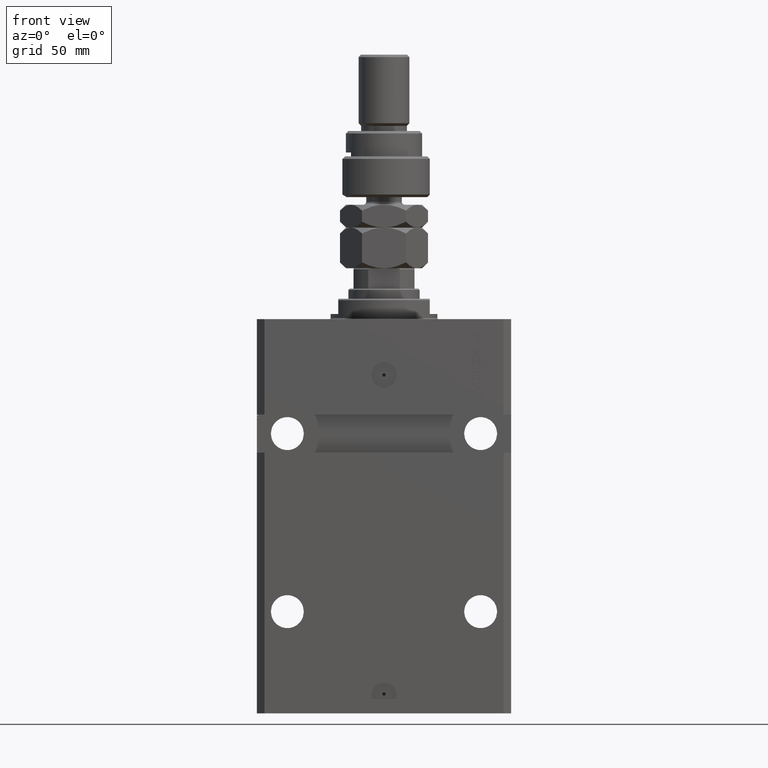
[diagram: clean part render]
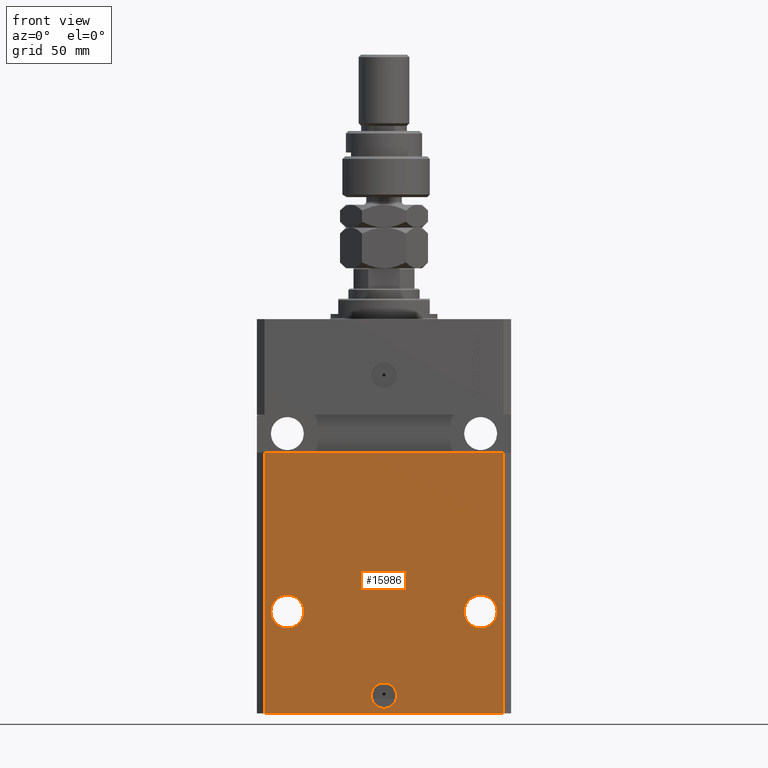
[diagram: same view with one face highlighted and labeled with its STEP entity id]
A machine part, front view. The second image highlights one B-rep face of the part: STEP entity #15986.
In plain terms, the highlighted planar face has unit normal (-0, -1, 0).
Its self-contained STEP definition (entity closure, byte-faithful):
#87 = DIRECTION ( 'NONE',  ( -1.000000000000000000, 0.000000000000000000, 0.000000000000000000 ) ) ;
#141 = CARTESIAN_POINT ( 'NONE',  ( 47.00000000000000000, -37.50000000000000711, -155.0000000000000000 ) ) ;
#528 = ORIENTED_EDGE ( 'NONE', *, *, #33166, .F. ) ;
#724 = DIRECTION ( 'NONE',  ( 1.000000000000000000, 0.000000000000000000, 0.000000000000000000 ) ) ;
#1275 = CARTESIAN_POINT ( 'NONE',  ( -47.00000000000000000, -37.49999999999999289, -155.0000000000000000 ) ) ;
#1932 = DIRECTION ( 'NONE',  ( -1.476360405086644309E-16, -1.000000000000000000, 0.000000000000000000 ) ) ;
#2224 = EDGE_LOOP ( 'NONE', ( #528, #7867 ) ) ;
#2244 = CIRCLE ( 'NONE', #24332, 6.499999999999999112 ) ;
#2297 = ORIENTED_EDGE ( 'NONE', *, *, #33686, .F. ) ;
#2831 = EDGE_CURVE ( 'NONE', #21325, #18239, #10465, .T. ) ;
#3031 = VERTEX_POINT ( 'NONE', #31474 ) ;
#3171 = DIRECTION ( 'NONE',  ( 1.000000000000000000, 0.000000000000000000, 0.000000000000000000 ) ) ;
#3817 = CARTESIAN_POINT ( 'NONE',  ( -38.00000000000002842, -37.50000000000000711, -115.0000000000000000 ) ) ;
#4293 = DIRECTION ( 'NONE',  ( 1.176083712526788232E-16, -1.000000000000000000, 0.000000000000000000 ) ) ;
#4346 = DIRECTION ( 'NONE',  ( 0.000000000000000000, 0.000000000000000000, 1.000000000000000000 ) ) ;
#4448 = CARTESIAN_POINT ( 'NONE',  ( 44.50000000000001421, -37.49999999999999289, -115.0000000000000000 ) ) ;
#4678 = CARTESIAN_POINT ( 'NONE',  ( -47.00000000000000000, -37.49999999999999289, -155.0000000000000000 ) ) ;
#4991 = EDGE_CURVE ( 'NONE', #44636, #3031, #41915, .T. ) ;
#5396 = VECTOR ( 'NONE', #27250, 1000.000000000000000 ) ;
#5931 = CARTESIAN_POINT ( 'NONE',  ( -50.00000000000002842, -37.50000000000000711, -52.50000000000000000 ) ) ;
#7066 = CARTESIAN_POINT ( 'NONE',  ( -5.536351519074916863E-15, -37.50000000000000000, -148.0000000000000000 ) ) ;
#7155 = VECTOR ( 'NONE', #21252, 1000.000000000000000 ) ;
#7609 = VERTEX_POINT ( 'NONE', #1275 ) ;
#7867 = ORIENTED_EDGE ( 'NONE', *, *, #28679, .F. ) ;
#8677 = VERTEX_POINT ( 'NONE', #24983 ) ;
#8805 = ORIENTED_EDGE ( 'NONE', *, *, #40327, .T. ) ;
#9115 = PLANE ( 'NONE',  #38359 ) ;
#10120 = ORIENTED_EDGE ( 'NONE', *, *, #4991, .F. ) ;
#10465 = CIRCLE ( 'NONE', #46695, 6.499999999999999112 ) ;
#11029 = VERTEX_POINT ( 'NONE', #38337 ) ;
#14475 = ORIENTED_EDGE ( 'NONE', *, *, #2831, .F. ) ;
#15034 = CIRCLE ( 'NONE', #19746, 6.499999999999999112 ) ;
#15844 = AXIS2_PLACEMENT_3D ( 'NONE', #19505, #34569, #724 ) ;
#15986 = ADVANCED_FACE ( 'NONE', ( #27893, #23461, #16529, #31584 ), #9115, .T. ) ;
#16137 = CARTESIAN_POINT ( 'NONE',  ( 31.50000000000001421, -37.49999999999999289, -115.0000000000000000 ) ) ;
#16529 = FACE_BOUND ( 'NONE', #2224, .T. ) ;
#16827 = CARTESIAN_POINT ( 'NONE',  ( -5.000000000000011546, -37.50000000000000000, -148.0000000000000000 ) ) ;
#18239 = VERTEX_POINT ( 'NONE', #16137 ) ;
#18674 = DIRECTION ( 'NONE',  ( 1.176083712526788232E-16, -1.000000000000000000, 0.000000000000000000 ) ) ;
#19505 = CARTESIAN_POINT ( 'NONE',  ( 38.00000000000001421, -37.49999999999999289, -115.0000000000000000 ) ) ;
#19746 = AXIS2_PLACEMENT_3D ( 'NONE', #20347, #27511, #19857 ) ;
#19857 = DIRECTION ( 'NONE',  ( -1.000000000000000000, 0.000000000000000000, 0.000000000000000000 ) ) ;
#20347 = CARTESIAN_POINT ( 'NONE',  ( -38.00000000000002842, -37.50000000000000711, -115.0000000000000000 ) ) ;
#21252 = DIRECTION ( 'NONE',  ( 1.000000000000000000, 1.387778780781445182E-16, 1.387778780781445182E-16 ) ) ;
#21325 = VERTEX_POINT ( 'NONE', #4448 ) ;
#23166 = ORIENTED_EDGE ( 'NONE', *, *, #28403, .F. ) ;
#23461 = FACE_BOUND ( 'NONE', #44996, .T. ) ;
#23561 = CIRCLE ( 'NONE', #40884, 5.000000000000006217 ) ;
#24168 = EDGE_CURVE ( 'NONE', #7609, #8677, #42768, .T. ) ;
#24332 = AXIS2_PLACEMENT_3D ( 'NONE', #3817, #4293, #87 ) ;
#24786 = CARTESIAN_POINT ( 'NONE',  ( -31.50000000000002842, -37.50000000000000711, -115.0000000000000000 ) ) ;
#24983 = CARTESIAN_POINT ( 'NONE',  ( 47.00000000000000000, -37.50000000000000711, -155.0000000000000000 ) ) ;
#25655 = VECTOR ( 'NONE', #37720, 1000.000000000000000 ) ;
#25851 = DIRECTION ( 'NONE',  ( 1.000000000000000000, 0.000000000000000000, 0.000000000000000000 ) ) ;
#25914 = DIRECTION ( 'NONE',  ( 1.176083712526788232E-16, -1.000000000000000000, 0.000000000000000000 ) ) ;
#26970 = VECTOR ( 'NONE', #4346, 1000.000000000000000 ) ;
#27250 = DIRECTION ( 'NONE',  ( 1.000000000000000000, -1.476360405086644309E-16, 0.000000000000000000 ) ) ;
#27511 = DIRECTION ( 'NONE',  ( 1.176083712526788232E-16, -1.000000000000000000, 0.000000000000000000 ) ) ;
#27893 = FACE_BOUND ( 'NONE', #37781, .T. ) ;
#28154 = ORIENTED_EDGE ( 'NONE', *, *, #34079, .F. ) ;
#28403 = EDGE_CURVE ( 'NONE', #3031, #44636, #23561, .T. ) ;
#28679 = EDGE_CURVE ( 'NONE', #11029, #34858, #2244, .T. ) ;
#29224 = CIRCLE ( 'NONE', #15844, 6.499999999999999112 ) ;
#29624 = CARTESIAN_POINT ( 'NONE',  ( -5.536351519074916863E-15, -37.50000000000000000, -148.0000000000000000 ) ) ;
#30793 = CARTESIAN_POINT ( 'NONE',  ( 47.00000000000000000, -37.49999999999999289, -52.49999999999998579 ) ) ;
#31474 = CARTESIAN_POINT ( 'NONE',  ( 5.000000000000000888, -37.50000000000000000, -148.0000000000000000 ) ) ;
#31584 = FACE_OUTER_BOUND ( 'NONE', #43628, .T. ) ;
#32072 = VERTEX_POINT ( 'NONE', #30793 ) ;
#32983 = DIRECTION ( 'NONE',  ( 1.000000000000000000, 0.000000000000000000, 0.000000000000000000 ) ) ;
#33166 = EDGE_CURVE ( 'NONE', #34858, #11029, #15034, .T. ) ;
#33686 = EDGE_CURVE ( 'NONE', #35039, #32072, #36065, .T. ) ;
#34079 = EDGE_CURVE ( 'NONE', #18239, #21325, #29224, .T. ) ;
#34569 = DIRECTION ( 'NONE',  ( 1.176083712526788232E-16, -1.000000000000000000, 0.000000000000000000 ) ) ;
#34858 = VERTEX_POINT ( 'NONE', #24786 ) ;
#35039 = VERTEX_POINT ( 'NONE', #42506 ) ;
#35621 = AXIS2_PLACEMENT_3D ( 'NONE', #7066, #40891, #25851 ) ;
#36065 = LINE ( 'NONE', #5931, #7155 ) ;
#36932 = CARTESIAN_POINT ( 'NONE',  ( 38.00000000000001421, -37.49999999999999289, -115.0000000000000000 ) ) ;
#37720 = DIRECTION ( 'NONE',  ( 0.000000000000000000, 0.000000000000000000, 1.000000000000000000 ) ) ;
#37781 = EDGE_LOOP ( 'NONE', ( #23166, #10120 ) ) ;
#37954 = LINE ( 'NONE', #45341, #25655 ) ;
#38337 = CARTESIAN_POINT ( 'NONE',  ( -44.50000000000002842, -37.50000000000000711, -115.0000000000000000 ) ) ;
#38359 = AXIS2_PLACEMENT_3D ( 'NONE', #4678, #1932, #42441 ) ;
#39812 = ORIENTED_EDGE ( 'NONE', *, *, #24168, .T. ) ;
#40327 = EDGE_CURVE ( 'NONE', #8677, #32072, #45309, .T. ) ;
#40884 = AXIS2_PLACEMENT_3D ( 'NONE', #29624, #25914, #3171 ) ;
#40891 = DIRECTION ( 'NONE',  ( 1.176083712526788232E-16, -1.000000000000000000, 0.000000000000000000 ) ) ;
#41915 = CIRCLE ( 'NONE', #35621, 5.000000000000006217 ) ;
#42441 = DIRECTION ( 'NONE',  ( 1.000000000000000000, -1.476360405086644309E-16, 0.000000000000000000 ) ) ;
#42506 = CARTESIAN_POINT ( 'NONE',  ( -46.99999999999998579, -37.50000000000000711, -52.50000000000000000 ) ) ;
#42528 = CARTESIAN_POINT ( 'NONE',  ( -47.00000000000000000, -37.49999999999999289, -155.0000000000000000 ) ) ;
#42768 = LINE ( 'NONE', #42528, #5396 ) ;
#43628 = EDGE_LOOP ( 'NONE', ( #2297, #47269, #39812, #8805 ) ) ;
#44636 = VERTEX_POINT ( 'NONE', #16827 ) ;
#44996 = EDGE_LOOP ( 'NONE', ( #14475, #28154 ) ) ;
#45309 = LINE ( 'NONE', #141, #26970 ) ;
#45341 = CARTESIAN_POINT ( 'NONE',  ( -47.00000000000000000, -37.49999999999999289, -155.0000000000000000 ) ) ;
#46695 = AXIS2_PLACEMENT_3D ( 'NONE', #36932, #18674, #32983 ) ;
#47269 = ORIENTED_EDGE ( 'NONE', *, *, #47494, .F. ) ;
#47494 = EDGE_CURVE ( 'NONE', #7609, #35039, #37954, .T. ) ;